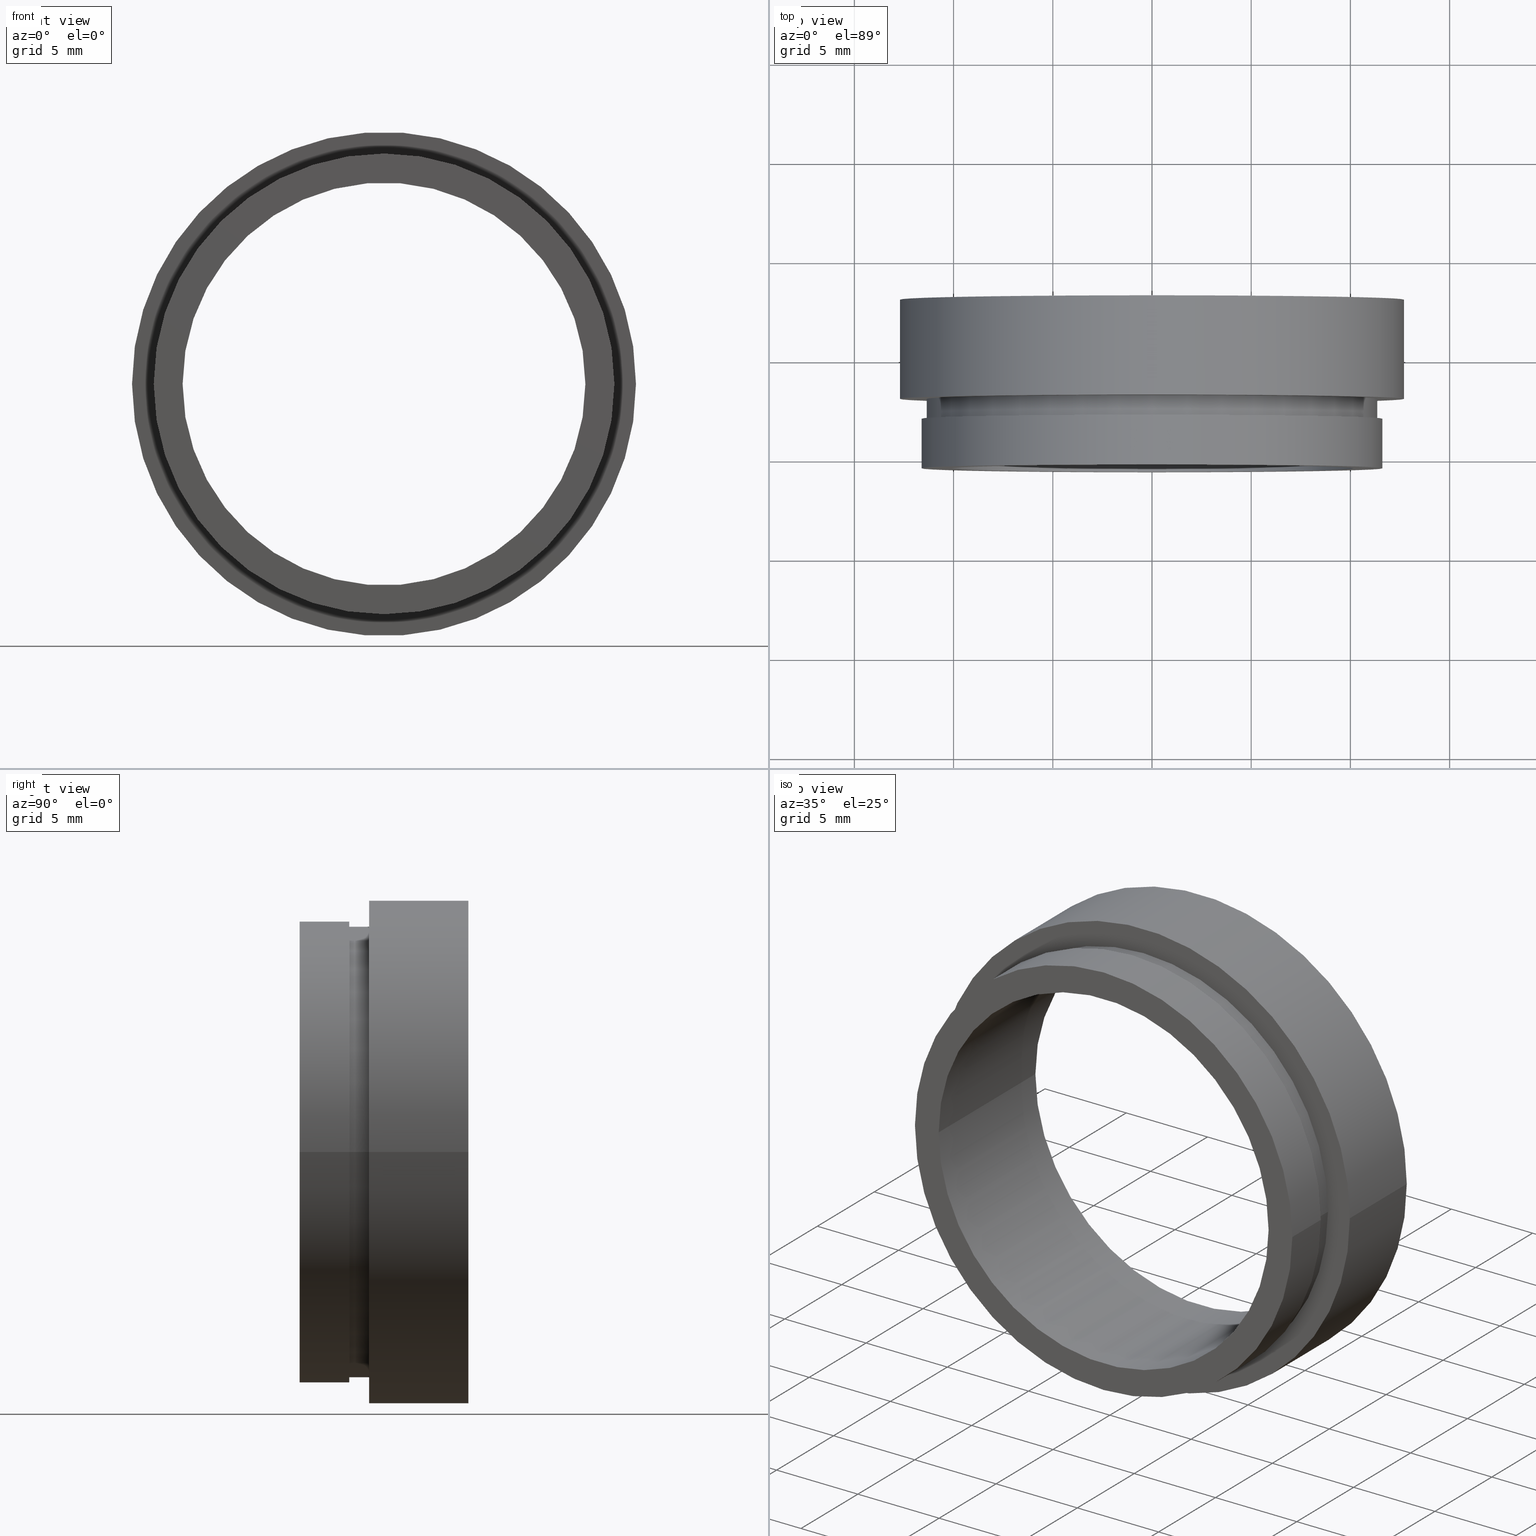
[diagram: canonical four-view strip — front | top / right | iso, engineering-drawing reading convention]
A machine part, canonical four-view strip (front | top / right | iso — engineering-drawing reading convention). The complete STEP part file that produces these views, byte-faithful:
ISO-10303-21;
HEADER;
FILE_DESCRIPTION (( 'STEP AP214' ),
    '1' );
FILE_NAME ('504129.STEP',
    '2019-10-09T01:59:32',
    ( '' ),
    ( '' ),
    'SwSTEP 2.0',
    'SolidWorks 2016',
    '' );
FILE_SCHEMA (( 'AUTOMOTIVE_DESIGN' ));
ENDSEC;

DATA;
#1 = AXIS2_PLACEMENT_3D ( 'NONE', #298, #390, #354 ) ;
#2 =( LENGTH_UNIT ( ) NAMED_UNIT ( * ) SI_UNIT ( .MILLI., .METRE. ) );
#3 = CIRCLE ( 'NONE', #41, 12.69999999999999800 ) ;
#4 = EDGE_LOOP ( 'NONE', ( #210, #407, #357, #266 ) ) ;
#5 =( GEOMETRIC_REPRESENTATION_CONTEXT ( 3 ) GLOBAL_UNCERTAINTY_ASSIGNED_CONTEXT ( ( #335 ) ) GLOBAL_UNIT_ASSIGNED_CONTEXT ( ( #80, #282, #431 ) ) REPRESENTATION_CONTEXT ( 'NONE', 'WORKASPACE' ) );
#6 = MECHANICAL_DESIGN_GEOMETRIC_PRESENTATION_REPRESENTATION (  '', ( #139 ), #248 ) ;
#7 = VECTOR ( 'NONE', #274, 1000.000000000000000 ) ;
#8 = SURFACE_STYLE_USAGE ( .BOTH. , #404 ) ;
#9 = DIRECTION ( 'NONE',  ( -1.224646799147351000E-016, 1.000000000000000000, -0.0000000000000000000 ) ) ;
#10 = FACE_OUTER_BOUND ( 'NONE', #172, .T. ) ;
#11 = VERTEX_POINT ( 'NONE', #190 ) ;
#12 = AXIS2_PLACEMENT_3D ( 'NONE', #189, #54, #19 ) ;
#13 = VECTOR ( 'NONE', #300, 1000.000000000000000 ) ;
#14 = EDGE_CURVE ( 'NONE', #258, #179, #371, .T. ) ;
#15 = LINE ( 'NONE', #350, #351 ) ;
#16 = ORIENTED_EDGE ( 'NONE', *, *, #77, .F. ) ;
#17 = VERTEX_POINT ( 'NONE', #157 ) ;
#18 = AXIS2_PLACEMENT_3D ( 'NONE', #156, #311, #46 ) ;
#19 = DIRECTION ( 'NONE',  ( -1.000000000000000000, 0.0000000000000000000, 0.0000000000000000000 ) ) ;
#20 = ADVANCED_FACE ( 'NONE', ( #433, #328 ), #121, .F. ) ;
#21 = ORIENTED_EDGE ( 'NONE', *, *, #145, .T. ) ;
#22 = DIRECTION ( 'NONE',  ( -1.000000000000000000, -1.214007600543631100E-016, 0.0000000000000000000 ) ) ;
#23 = DIRECTION ( 'NONE',  ( 1.000000000000000000, 1.224646799147351000E-016, 0.0000000000000000000 ) ) ;
#24 = DIRECTION ( 'NONE',  ( -1.224646799147351000E-016, 1.000000000000000000, -0.0000000000000000000 ) ) ;
#25 = CIRCLE ( 'NONE', #26, 11.60999999999999900 ) ;
#26 = AXIS2_PLACEMENT_3D ( 'NONE', #212, #430, #22 ) ;
#27 =( NAMED_UNIT ( * ) PLANE_ANGLE_UNIT ( ) SI_UNIT ( $, .RADIAN. ) );
#28 = CARTESIAN_POINT ( 'NONE',  ( 11.35000000000000100, 2.954535588880335500, 0.0000000000000000000 ) ) ;
#29 = FILL_AREA_STYLE_COLOUR ( '', #34 ) ;
#30 = ORIENTED_EDGE ( 'NONE', *, *, #215, .T. ) ;
#31 = DIRECTION ( 'NONE',  ( 1.000000000000000000, 0.0000000000000000000, 0.0000000000000000000 ) ) ;
#32 = FILL_AREA_STYLE_COLOUR ( '', #39 ) ;
#33 = CARTESIAN_POINT ( 'NONE',  ( 0.0000000000000000000, 16.88601823708207700, 0.0000000000000000000 ) ) ;
#34 = COLOUR_RGB ( '',1.000000000000000000, 1.000000000000000000, 1.000000000000000000 ) ;
#35 = PRESENTATION_LAYER_ASSIGNMENT (  '', '', ( #420 ) ) ;
#36 = VERTEX_POINT ( 'NONE', #160 ) ;
#37 = AXIS2_PLACEMENT_3D ( 'NONE', #122, #195, #31 ) ;
#38 = DIRECTION ( 'NONE',  ( -1.224646799147351000E-016, 1.000000000000000000, -0.0000000000000000000 ) ) ;
#39 = COLOUR_RGB ( '',1.000000000000000000, 1.000000000000000000, 1.000000000000000000 ) ;
#40 = LINE ( 'NONE', #301, #126 ) ;
#41 = AXIS2_PLACEMENT_3D ( 'NONE', #290, #218, #385 ) ;
#42 = FACE_OUTER_BOUND ( 'NONE', #152, .T. ) ;
#43 = CIRCLE ( 'NONE', #178, 11.60999999999999900 ) ;
#44 = CARTESIAN_POINT ( 'NONE',  ( 2.134740942951285100E-015, -0.5454644111196650400, 0.0000000000000000000 ) ) ;
#45 = ORIENTED_EDGE ( 'NONE', *, *, #296, .T. ) ;
#46 = DIRECTION ( 'NONE',  ( 1.000000000000000000, 1.224646799147351000E-016, 0.0000000000000000000 ) ) ;
#47 = DIRECTION ( 'NONE',  ( -1.000000000000000000, -1.365923996832131900E-016, 0.0000000000000000000 ) ) ;
#48 = MECHANICAL_DESIGN_GEOMETRIC_PRESENTATION_REPRESENTATION (  '', ( #420 ), #88 ) ;
#49 = CYLINDRICAL_SURFACE ( 'NONE', #60, 10.15000000000000200 ) ;
#50 =( NAMED_UNIT ( * ) PLANE_ANGLE_UNIT ( ) SI_UNIT ( $, .RADIAN. ) );
#51 = PRODUCT_DEFINITION ( 'δ֪', '', #326, #408 ) ;
#52 = PRESENTATION_LAYER_ASSIGNMENT (  '', '', ( #191 ) ) ;
#53 = DIRECTION ( 'NONE',  ( -1.000000000000000000, 0.0000000000000000000, 0.0000000000000000000 ) ) ;
#54 = DIRECTION ( 'NONE',  ( -1.224646799147351000E-016, 1.000000000000000000, -0.0000000000000000000 ) ) ;
#55 = ORIENTED_EDGE ( 'NONE', *, *, #106, .T. ) ;
#56 = CARTESIAN_POINT ( 'NONE',  ( 10.15000000000000400, -0.5454644111196651500, 0.0000000000000000000 ) ) ;
#57 = DIRECTION ( 'NONE',  ( -1.000000000000000000, 0.0000000000000000000, 0.0000000000000000000 ) ) ;
#58 = ORIENTED_EDGE ( 'NONE', *, *, #233, .T. ) ;
#59 = EDGE_LOOP ( 'NONE', ( #194, #197 ) ) ;
#60 = AXIS2_PLACEMENT_3D ( 'NONE', #284, #24, #53 ) ;
#61 = FILL_AREA_STYLE ('',( #32 ) ) ;
#62 = SURFACE_STYLE_USAGE ( .BOTH. , #222 ) ;
#63 = CYLINDRICAL_SURFACE ( 'NONE', #95, 10.15000000000000200 ) ;
#64 = AXIS2_PLACEMENT_3D ( 'NONE', #33, #198, #91 ) ;
#65 = ORIENTED_EDGE ( 'NONE', *, *, #77, .T. ) ;
#66 = PRESENTATION_LAYER_ASSIGNMENT (  '', '', ( #139 ) ) ;
#67 = SURFACE_STYLE_FILL_AREA ( #330 ) ;
#68 = VECTOR ( 'NONE', #83, 1000.000000000000000 ) ;
#69 = COLOUR_RGB ( '',1.000000000000000000, 1.000000000000000000, 1.000000000000000000 ) ;
#70 = UNCERTAINTY_MEASURE_WITH_UNIT (LENGTH_MEASURE( 1.000000000000000100E-005 ), #363, 'distance_accuracy_value', 'NONE');
#71 = MECHANICAL_DESIGN_GEOMETRIC_PRESENTATION_REPRESENTATION (  '', ( #245 ), #114 ) ;
#72 = EDGE_CURVE ( 'NONE', #180, #309, #161, .T. ) ;
#73 = EDGE_LOOP ( 'NONE', ( #346, #111 ) ) ;
#74 = ORIENTED_EDGE ( 'NONE', *, *, #306, .T. ) ;
#75 = ORIENTED_EDGE ( 'NONE', *, *, #257, .F. ) ;
#76 = PRESENTATION_LAYER_ASSIGNMENT (  '', '', ( #199 ) ) ;
#77 = EDGE_CURVE ( 'NONE', #17, #108, #244, .T. ) ;
#78 = DIRECTION ( 'NONE',  ( -1.000000000000000000, -1.174997428309413300E-016, 0.0000000000000000000 ) ) ;
#79 = CARTESIAN_POINT ( 'NONE',  ( 12.69999999999999800, 16.88601823708207700, 1.555301434917138200E-015 ) ) ;
#80 =( LENGTH_UNIT ( ) NAMED_UNIT ( * ) SI_UNIT ( .MILLI., .METRE. ) );
#81 = FACE_BOUND ( 'NONE', #333, .T. ) ;
#82 = ADVANCED_FACE ( 'NONE', ( #10 ), #63, .F. ) ;
#83 = DIRECTION ( 'NONE',  ( -1.224646799147351000E-016, 1.000000000000000000, -0.0000000000000000000 ) ) ;
#84 = PLANE ( 'NONE',  #204 ) ;
#85 = ORIENTED_EDGE ( 'NONE', *, *, #201, .T. ) ;
#86 = CARTESIAN_POINT ( 'NONE',  ( 1.706114563249712500E-015, 2.954535588880332900, 0.0000000000000000000 ) ) ;
#87 = CARTESIAN_POINT ( 'NONE',  ( 1.093791163676037000E-015, 7.954535588880333700, 0.0000000000000000000 ) ) ;
#88 =( GEOMETRIC_REPRESENTATION_CONTEXT ( 3 ) GLOBAL_UNCERTAINTY_ASSIGNED_CONTEXT ( ( #146 ) ) GLOBAL_UNIT_ASSIGNED_CONTEXT ( ( #2, #167, #203 ) ) REPRESENTATION_CONTEXT ( 'NONE', 'WORKASPACE' ) );
#89 = SURFACE_STYLE_FILL_AREA ( #276 ) ;
#90 = DIRECTION ( 'NONE',  ( -1.000000000000000000, -1.224646799147351000E-016, 0.0000000000000000000 ) ) ;
#91 = DIRECTION ( 'NONE',  ( -1.000000000000000000, 0.0000000000000000000, 0.0000000000000000000 ) ) ;
#92 = PRODUCT_CONTEXT ( 'NONE', #192, 'mechanical' ) ;
#93 = ORIENTED_EDGE ( 'NONE', *, *, #280, .F. ) ;
#94 = SURFACE_SIDE_STYLE ('',( #273 ) ) ;
#95 = AXIS2_PLACEMENT_3D ( 'NONE', #154, #123, #57 ) ;
#96 = DIRECTION ( 'NONE',  ( -1.000000000000000000, 0.0000000000000000000, 0.0000000000000000000 ) ) ;
#97 = EDGE_CURVE ( 'NONE', #425, #11, #3, .T. ) ;
#98 = CARTESIAN_POINT ( 'NONE',  ( 11.61000000000000100, -0.5454644111196637100, 1.421814933810076900E-015 ) ) ;
#99 =( NAMED_UNIT ( * ) PLANE_ANGLE_UNIT ( ) SI_UNIT ( $, .RADIAN. ) );
#100 = DIRECTION ( 'NONE',  ( -1.224646799147351000E-016, 1.000000000000000000, -0.0000000000000000000 ) ) ;
#101 = EDGE_LOOP ( 'NONE', ( #272, #253, #45, #75 ) ) ;
#102 = PRESENTATION_STYLE_ASSIGNMENT (( #8 ) ) ;
#103 = CARTESIAN_POINT ( 'NONE',  ( -10.15000000000000000, -0.5454644111196662600, 0.0000000000000000000 ) ) ;
#104 = UNCERTAINTY_MEASURE_WITH_UNIT (LENGTH_MEASURE( 1.000000000000000100E-005 ), #220, 'distance_accuracy_value', 'NONE');
#105 = AXIS2_PLACEMENT_3D ( 'NONE', #86, #320, #384 ) ;
#106 = EDGE_CURVE ( 'NONE', #297, #405, #151, .T. ) ;
#107 = LINE ( 'NONE', #260, #366 ) ;
#108 = VERTEX_POINT ( 'NONE', #243 ) ;
#109 = AXIS2_PLACEMENT_3D ( 'NONE', #265, #175, #137 ) ;
#110 = EDGE_LOOP ( 'NONE', ( #112, #58 ) ) ;
#111 = ORIENTED_EDGE ( 'NONE', *, *, #319, .T. ) ;
#112 = ORIENTED_EDGE ( 'NONE', *, *, #327, .T. ) ;
#113 = SURFACE_SIDE_STYLE ('',( #89 ) ) ;
#114 =( GEOMETRIC_REPRESENTATION_CONTEXT ( 3 ) GLOBAL_UNCERTAINTY_ASSIGNED_CONTEXT ( ( #70 ) ) GLOBAL_UNIT_ASSIGNED_CONTEXT ( ( #363, #99, #168 ) ) REPRESENTATION_CONTEXT ( 'NONE', 'WORKASPACE' ) );
#115 = ADVANCED_FACE ( 'NONE', ( #81, #307 ), #84, .F. ) ;
#116 = APPLICATION_PROTOCOL_DEFINITION ( 'draft international standard', 'automotive_design', 1998, #192 ) ;
#117 = COLOUR_RGB ( '',1.000000000000000000, 1.000000000000000000, 1.000000000000000000 ) ;
#118 = EDGE_CURVE ( 'NONE', #341, #179, #43, .T. ) ;
#119 = DIRECTION ( 'NONE',  ( -1.000000000000000000, 0.0000000000000000000, 0.0000000000000000000 ) ) ;
#120 = CARTESIAN_POINT ( 'NONE',  ( 1.828579243164447600E-015, 1.954535588880333700, 0.0000000000000000000 ) ) ;
#121 = PLANE ( 'NONE',  #140 ) ;
#122 = CARTESIAN_POINT ( 'NONE',  ( 0.0000000000000000000, 0.0000000000000000000, 0.0000000000000000000 ) ) ;
#123 = DIRECTION ( 'NONE',  ( -1.224646799147351000E-016, 1.000000000000000000, -0.0000000000000000000 ) ) ;
#124 = FILL_AREA_STYLE ('',( #29 ) ) ;
#125 =( NAMED_UNIT ( * ) PLANE_ANGLE_UNIT ( ) SI_UNIT ( $, .RADIAN. ) );
#126 = VECTOR ( 'NONE', #100, 1000.000000000000000 ) ;
#127 = CIRCLE ( 'NONE', #398, 12.69999999999999800 ) ;
#128 = AXIS2_PLACEMENT_3D ( 'NONE', #182, #374, #188 ) ;
#129 = EDGE_CURVE ( 'NONE', #179, #341, #302, .T. ) ;
#130 = AXIS2_PLACEMENT_3D ( 'NONE', #120, #422, #428 ) ;
#131 = CARTESIAN_POINT ( 'NONE',  ( 1.828579243164447600E-015, 1.954535588880333700, 0.0000000000000000000 ) ) ;
#132 = FACE_OUTER_BOUND ( 'NONE', #434, .T. ) ;
#133 = EDGE_LOOP ( 'NONE', ( #417, #21 ) ) ;
#134 = DIRECTION ( 'NONE',  ( -1.000000000000000000, 0.0000000000000000000, 0.0000000000000000000 ) ) ;
#135 = UNCERTAINTY_MEASURE_WITH_UNIT (LENGTH_MEASURE( 1.000000000000000100E-005 ), #163, 'distance_accuracy_value', 'NONE');
#136 = ORIENTED_EDGE ( 'NONE', *, *, #270, .F. ) ;
#137 = DIRECTION ( 'NONE',  ( -1.000000000000000000, 0.0000000000000000000, 0.0000000000000000000 ) ) ;
#138 = AXIS2_PLACEMENT_3D ( 'NONE', #387, #288, #224 ) ;
#139 = STYLED_ITEM ( 'NONE', ( #410 ), #324 ) ;
#140 = AXIS2_PLACEMENT_3D ( 'NONE', #28, #225, #90 ) ;
#141 = ORIENTED_EDGE ( 'NONE', *, *, #369, .F. ) ;
#142 = ORIENTED_EDGE ( 'NONE', *, *, #215, .F. ) ;
#143 = CARTESIAN_POINT ( 'NONE',  ( -11.60999999999999800, 1.954535588880332400, 0.0000000000000000000 ) ) ;
#144 =( GEOMETRIC_REPRESENTATION_CONTEXT ( 3 ) GLOBAL_UNCERTAINTY_ASSIGNED_CONTEXT ( ( #181 ) ) GLOBAL_UNIT_ASSIGNED_CONTEXT ( ( #242, #50, #281 ) ) REPRESENTATION_CONTEXT ( 'NONE', 'WORKASPACE' ) );
#145 = EDGE_CURVE ( 'NONE', #11, #425, #127, .T. ) ;
#146 = UNCERTAINTY_MEASURE_WITH_UNIT (LENGTH_MEASURE( 1.000000000000000100E-005 ), #2, 'distance_accuracy_value', 'NONE');
#147 = FACE_OUTER_BOUND ( 'NONE', #176, .T. ) ;
#148 = DIRECTION ( 'NONE',  ( -1.224646799147351000E-016, 1.000000000000000000, -0.0000000000000000000 ) ) ;
#149 = CARTESIAN_POINT ( 'NONE',  ( 10.15000000000000200, 16.88601823708207700, 1.243016501134563900E-015 ) ) ;
#150 = CARTESIAN_POINT ( 'NONE',  ( 1.828579243164447600E-015, 1.954535588880333700, 0.0000000000000000000 ) ) ;
#151 = CIRCLE ( 'NONE', #362, 12.69999999999999800 ) ;
#152 = EDGE_LOOP ( 'NONE', ( #364, #237, #74, #254 ) ) ;
#153 = DIRECTION ( 'NONE',  ( -1.000000000000000000, -1.224646799147351000E-016, 0.0000000000000000000 ) ) ;
#154 = CARTESIAN_POINT ( 'NONE',  ( 0.0000000000000000000, 16.88601823708207700, 0.0000000000000000000 ) ) ;
#155 = STYLED_ITEM ( 'NONE', ( #396 ), #279 ) ;
#156 = CARTESIAN_POINT ( 'NONE',  ( 11.35000000000000300, 1.954535588880335500, 0.0000000000000000000 ) ) ;
#157 = CARTESIAN_POINT ( 'NONE',  ( 11.35000000000000300, 1.954535588880335100, 1.389974117032246300E-015 ) ) ;
#158 = FACE_OUTER_BOUND ( 'NONE', #375, .T. ) ;
#159 = APPLICATION_CONTEXT ( 'automotive_design' ) ;
#160 = CARTESIAN_POINT ( 'NONE',  ( -11.34999999999999800, 2.954535588880331500, 0.0000000000000000000 ) ) ;
#161 = CIRCLE ( 'NONE', #170, 10.15000000000000000 ) ;
#162 = ORIENTED_EDGE ( 'NONE', *, *, #106, .F. ) ;
#163 =( LENGTH_UNIT ( ) NAMED_UNIT ( * ) SI_UNIT ( .MILLI., .METRE. ) );
#164 = PRESENTATION_STYLE_ASSIGNMENT (( #380 ) ) ;
#165 = SURFACE_STYLE_USAGE ( .BOTH. , #94 ) ;
#166 = AXIS2_PLACEMENT_3D ( 'NONE', #221, #313, #285 ) ;
#167 =( NAMED_UNIT ( * ) PLANE_ANGLE_UNIT ( ) SI_UNIT ( $, .RADIAN. ) );
#168 =( NAMED_UNIT ( * ) SI_UNIT ( $, .STERADIAN. ) SOLID_ANGLE_UNIT ( ) );
#169 = ORIENTED_EDGE ( 'NONE', *, *, #280, .T. ) ;
#170 = AXIS2_PLACEMENT_3D ( 'NONE', #87, #259, #392 ) ;
#171 = CARTESIAN_POINT ( 'NONE',  ( 11.35000000000000000, 16.88601823708207700, 1.389974117032245900E-015 ) ) ;
#172 = EDGE_LOOP ( 'NONE', ( #141, #271, #318, #202 ) ) ;
#173 = CARTESIAN_POINT ( 'NONE',  ( 2.134740942951285100E-015, -0.5454644111196650400, 0.0000000000000000000 ) ) ;
#174 = EDGE_CURVE ( 'NONE', #36, #262, #395, .T. ) ;
#175 = DIRECTION ( 'NONE',  ( -1.224646799147351000E-016, 1.000000000000000000, -0.0000000000000000000 ) ) ;
#176 = EDGE_LOOP ( 'NONE', ( #246, #136 ) ) ;
#177 = CYLINDRICAL_SURFACE ( 'NONE', #358, 12.69999999999999800 ) ;
#178 = AXIS2_PLACEMENT_3D ( 'NONE', #150, #382, #424 ) ;
#179 = VERTEX_POINT ( 'NONE', #312 ) ;
#180 = VERTEX_POINT ( 'NONE', #381 ) ;
#181 = UNCERTAINTY_MEASURE_WITH_UNIT (LENGTH_MEASURE( 1.000000000000000100E-005 ), #242, 'distance_accuracy_value', 'NONE');
#182 = CARTESIAN_POINT ( 'NONE',  ( 1.706114563249712500E-015, 2.954535588880332900, 0.0000000000000000000 ) ) ;
#183 = PLANE ( 'NONE',  #412 ) ;
#184 = DIRECTION ( 'NONE',  ( -1.000000000000000000, -1.365923996832131900E-016, 0.0000000000000000000 ) ) ;
#185 = AXIS2_PLACEMENT_3D ( 'NONE', #131, #9, #227 ) ;
#186 = EDGE_LOOP ( 'NONE', ( #93, #355, #340, #361 ) ) ;
#187 = ADVANCED_FACE ( 'NONE', ( #292 ), #386, .T. ) ;
#188 = DIRECTION ( 'NONE',  ( -1.000000000000000000, -1.365923996832131900E-016, 0.0000000000000000000 ) ) ;
#189 = CARTESIAN_POINT ( 'NONE',  ( 0.0000000000000000000, 16.88601823708207700, 0.0000000000000000000 ) ) ;
#190 = CARTESIAN_POINT ( 'NONE',  ( 12.69999999999999900, 7.954535588880335500, 1.555301434917138200E-015 ) ) ;
#191 = STYLED_ITEM ( 'NONE', ( #287 ), #82 ) ;
#192 = APPLICATION_CONTEXT ( 'automotive_design' ) ;
#193 = FILL_AREA_STYLE_COLOUR ( '', #69 ) ;
#194 = ORIENTED_EDGE ( 'NONE', *, *, #118, .T. ) ;
#195 = DIRECTION ( 'NONE',  ( 0.0000000000000000000, 0.0000000000000000000, 1.000000000000000000 ) ) ;
#196 = SURFACE_STYLE_USAGE ( .BOTH. , #314 ) ;
#197 = ORIENTED_EDGE ( 'NONE', *, *, #129, .T. ) ;
#198 = DIRECTION ( 'NONE',  ( -1.224646799147351000E-016, 1.000000000000000000, -0.0000000000000000000 ) ) ;
#199 = STYLED_ITEM ( 'NONE', ( #164 ), #379 ) ;
#200 = FACE_OUTER_BOUND ( 'NONE', #4, .T. ) ;
#201 = EDGE_CURVE ( 'NONE', #108, #17, #373, .T. ) ;
#202 = ORIENTED_EDGE ( 'NONE', *, *, #72, .T. ) ;
#203 =( NAMED_UNIT ( * ) SI_UNIT ( $, .STERADIAN. ) SOLID_ANGLE_UNIT ( ) );
#204 = AXIS2_PLACEMENT_3D ( 'NONE', #344, #321, #23 ) ;
#205 = DIRECTION ( 'NONE',  ( -1.224646799147351000E-016, 1.000000000000000000, -0.0000000000000000000 ) ) ;
#206 = PRESENTATION_STYLE_ASSIGNMENT (( #165 ) ) ;
#207 = ORIENTED_EDGE ( 'NONE', *, *, #319, .F. ) ;
#208 = PRESENTATION_LAYER_ASSIGNMENT (  '', '', ( #155 ) ) ;
#209 = AXIS2_PLACEMENT_3D ( 'NONE', #277, #223, #389 ) ;
#210 = ORIENTED_EDGE ( 'NONE', *, *, #423, .T. ) ;
#211 = CIRCLE ( 'NONE', #105, 11.35000000000000000 ) ;
#212 = CARTESIAN_POINT ( 'NONE',  ( 2.134740942951285100E-015, -0.5454644111196650400, 0.0000000000000000000 ) ) ;
#213 = CARTESIAN_POINT ( 'NONE',  ( 1.093791163676037000E-015, 7.954535588880333700, 0.0000000000000000000 ) ) ;
#214 = AXIS2_PLACEMENT_3D ( 'NONE', #44, #388, #78 ) ;
#215 = EDGE_CURVE ( 'NONE', #108, #36, #40, .T. ) ;
#216 = SHAPE_DEFINITION_REPRESENTATION ( #376, #324 ) ;
#217 = ADVANCED_FACE ( 'NONE', ( #42 ), #394, .T. ) ;
#218 = DIRECTION ( 'NONE',  ( -1.224646799147351000E-016, 1.000000000000000000, -0.0000000000000000000 ) ) ;
#219 = CIRCLE ( 'NONE', #214, 10.15000000000000200 ) ;
#220 =( LENGTH_UNIT ( ) NAMED_UNIT ( * ) SI_UNIT ( .MILLI., .METRE. ) );
#221 = CARTESIAN_POINT ( 'NONE',  ( 1.706114563249712500E-015, 2.954535588880332900, 0.0000000000000000000 ) ) ;
#222 = SURFACE_SIDE_STYLE ('',( #275 ) ) ;
#223 = DIRECTION ( 'NONE',  ( -1.224646799147351000E-016, 1.000000000000000000, -0.0000000000000000000 ) ) ;
#224 = DIRECTION ( 'NONE',  ( -1.000000000000000000, -1.214007600543631100E-016, 0.0000000000000000000 ) ) ;
#225 = DIRECTION ( 'NONE',  ( -1.224646799147351000E-016, 1.000000000000000000, 0.0000000000000000000 ) ) ;
#226 = ORIENTED_EDGE ( 'NONE', *, *, #249, .F. ) ;
#227 = DIRECTION ( 'NONE',  ( -1.000000000000000000, -1.146293045799652200E-016, 0.0000000000000000000 ) ) ;
#228 = AXIS2_PLACEMENT_3D ( 'NONE', #173, #409, #305 ) ;
#229 = CARTESIAN_POINT ( 'NONE',  ( -11.60999999999999900, 16.88601823708207700, 0.0000000000000000000 ) ) ;
#230 = MECHANICAL_DESIGN_GEOMETRIC_PRESENTATION_REPRESENTATION (  '', ( #191 ), #5 ) ;
#231 = EDGE_LOOP ( 'NONE', ( #226, #65, #30, #207 ) ) ;
#232 = VERTEX_POINT ( 'NONE', #336 ) ;
#233 = EDGE_CURVE ( 'NONE', #304, #308, #403, .T. ) ;
#234 = CIRCLE ( 'NONE', #128, 12.69999999999999800 ) ;
#235 = VECTOR ( 'NONE', #429, 1000.000000000000000 ) ;
#236 = UNCERTAINTY_MEASURE_WITH_UNIT (LENGTH_MEASURE( 1.000000000000000100E-005 ), #251, 'distance_accuracy_value', 'NONE');
#237 = ORIENTED_EDGE ( 'NONE', *, *, #270, .T. ) ;
#238 = CARTESIAN_POINT ( 'NONE',  ( 0.0000000000000000000, 16.88601823708207700, 0.0000000000000000000 ) ) ;
#239 = FACE_OUTER_BOUND ( 'NONE', #186, .T. ) ;
#240 = FILL_AREA_STYLE_COLOUR ( '', #256 ) ;
#241 = ADVANCED_FACE ( 'NONE', ( #158 ), #264, .T. ) ;
#242 =( LENGTH_UNIT ( ) NAMED_UNIT ( * ) SI_UNIT ( .MILLI., .METRE. ) );
#243 = CARTESIAN_POINT ( 'NONE',  ( -11.35000000000000000, 1.954535588880332400, 0.0000000000000000000 ) ) ;
#244 = CIRCLE ( 'NONE', #209, 11.35000000000000100 ) ;
#245 = STYLED_ITEM ( 'NONE', ( #102 ), #255 ) ;
#246 = ORIENTED_EDGE ( 'NONE', *, *, #423, .F. ) ;
#247 = DIRECTION ( 'NONE',  ( -1.224646799147351000E-016, 1.000000000000000000, -0.0000000000000000000 ) ) ;
#248 =( GEOMETRIC_REPRESENTATION_CONTEXT ( 3 ) GLOBAL_UNCERTAINTY_ASSIGNED_CONTEXT ( ( #236 ) ) GLOBAL_UNIT_ASSIGNED_CONTEXT ( ( #251, #125, #356 ) ) REPRESENTATION_CONTEXT ( 'NONE', 'WORKASPACE' ) );
#249 = EDGE_CURVE ( 'NONE', #17, #262, #416, .T. ) ;
#250 =( NAMED_UNIT ( * ) SI_UNIT ( $, .STERADIAN. ) SOLID_ANGLE_UNIT ( ) );
#251 =( LENGTH_UNIT ( ) NAMED_UNIT ( * ) SI_UNIT ( .MILLI., .METRE. ) );
#252 = CARTESIAN_POINT ( 'NONE',  ( 11.35000000000000100, 2.954535588880334200, 1.389974117032245900E-015 ) ) ;
#253 = ORIENTED_EDGE ( 'NONE', *, *, #369, .T. ) ;
#254 = ORIENTED_EDGE ( 'NONE', *, *, #129, .F. ) ;
#255 = MANIFOLD_SOLID_BREP ( '��ת1', #278 ) ;
#256 = COLOUR_RGB ( '',1.000000000000000000, 1.000000000000000000, 1.000000000000000000 ) ;
#257 = EDGE_CURVE ( 'NONE', #308, #180, #107, .T. ) ;
#258 = VERTEX_POINT ( 'NONE', #98 ) ;
#259 = DIRECTION ( 'NONE',  ( -1.224646799147351000E-016, 1.000000000000000000, -0.0000000000000000000 ) ) ;
#260 = CARTESIAN_POINT ( 'NONE',  ( -10.15000000000000200, 16.88601823708207700, 0.0000000000000000000 ) ) ;
#261 = ORIENTED_EDGE ( 'NONE', *, *, #201, .F. ) ;
#262 = VERTEX_POINT ( 'NONE', #252 ) ;
#263 = CARTESIAN_POINT ( 'NONE',  ( 0.0000000000000000000, 16.88601823708207700, 0.0000000000000000000 ) ) ;
#264 = CYLINDRICAL_SURFACE ( 'NONE', #268, 11.35000000000000000 ) ;
#265 = CARTESIAN_POINT ( 'NONE',  ( 0.0000000000000000000, 16.88601823708207700, 0.0000000000000000000 ) ) ;
#266 = ORIENTED_EDGE ( 'NONE', *, *, #306, .F. ) ;
#267 = PRODUCT ( '504129', '504129', '', ( #92 ) ) ;
#268 = AXIS2_PLACEMENT_3D ( 'NONE', #263, #365, #134 ) ;
#269 = FACE_OUTER_BOUND ( 'NONE', #59, .T. ) ;
#270 = EDGE_CURVE ( 'NONE', #258, #232, #303, .T. ) ;
#271 = ORIENTED_EDGE ( 'NONE', *, *, #327, .F. ) ;
#272 = ORIENTED_EDGE ( 'NONE', *, *, #233, .F. ) ;
#273 = SURFACE_STYLE_FILL_AREA ( #61 ) ;
#274 = DIRECTION ( 'NONE',  ( -1.224646799147351000E-016, 1.000000000000000000, -0.0000000000000000000 ) ) ;
#275 = SURFACE_STYLE_FILL_AREA ( #124 ) ;
#276 = FILL_AREA_STYLE ('',( #427 ) ) ;
#277 = CARTESIAN_POINT ( 'NONE',  ( 1.828579243164447600E-015, 1.954535588880333700, 0.0000000000000000000 ) ) ;
#278 = CLOSED_SHELL ( 'NONE', ( #279, #241, #283, #379, #421, #82, #115, #347, #20, #187, #352, #217 ) ) ;
#279 = ADVANCED_FACE ( 'NONE', ( #200 ), #426, .T. ) ;
#280 = EDGE_CURVE ( 'NONE', #405, #11, #299, .T. ) ;
#281 =( NAMED_UNIT ( * ) SI_UNIT ( $, .STERADIAN. ) SOLID_ANGLE_UNIT ( ) );
#282 =( NAMED_UNIT ( * ) PLANE_ANGLE_UNIT ( ) SI_UNIT ( $, .RADIAN. ) );
#283 = ADVANCED_FACE ( 'NONE', ( #132 ), #414, .T. ) ;
#284 = CARTESIAN_POINT ( 'NONE',  ( 0.0000000000000000000, 16.88601823708207700, 0.0000000000000000000 ) ) ;
#285 = DIRECTION ( 'NONE',  ( -1.000000000000000000, -1.146293045799652200E-016, 0.0000000000000000000 ) ) ;
#286 = DIRECTION ( 'NONE',  ( -1.224646799147351000E-016, 1.000000000000000000, -0.0000000000000000000 ) ) ;
#287 = PRESENTATION_STYLE_ASSIGNMENT (( #196 ) ) ;
#288 = DIRECTION ( 'NONE',  ( -1.224646799147351000E-016, 1.000000000000000000, -0.0000000000000000000 ) ) ;
#289 = FILL_AREA_STYLE ('',( #240 ) ) ;
#290 = CARTESIAN_POINT ( 'NONE',  ( 1.093791163676037000E-015, 7.954535588880333700, 0.0000000000000000000 ) ) ;
#291 = SURFACE_SIDE_STYLE ('',( #415 ) ) ;
#292 = FACE_OUTER_BOUND ( 'NONE', #231, .T. ) ;
#293 = ORIENTED_EDGE ( 'NONE', *, *, #249, .T. ) ;
#294 = FACE_OUTER_BOUND ( 'NONE', #101, .T. ) ;
#295 = PRESENTATION_LAYER_ASSIGNMENT (  '', '', ( #245 ) ) ;
#296 = EDGE_CURVE ( 'NONE', #309, #180, #418, .T. ) ;
#297 = VERTEX_POINT ( 'NONE', #337 ) ;
#298 = CARTESIAN_POINT ( 'NONE',  ( 1.093791163676037000E-015, 7.954535588880333700, 0.0000000000000000000 ) ) ;
#299 = LINE ( 'NONE', #79, #68 ) ;
#300 = DIRECTION ( 'NONE',  ( -1.224646799147351000E-016, 1.000000000000000000, -0.0000000000000000000 ) ) ;
#301 = CARTESIAN_POINT ( 'NONE',  ( -11.35000000000000000, 16.88601823708207700, 0.0000000000000000000 ) ) ;
#302 = CIRCLE ( 'NONE', #130, 11.60999999999999900 ) ;
#303 = CIRCLE ( 'NONE', #138, 11.60999999999999900 ) ;
#304 = VERTEX_POINT ( 'NONE', #411 ) ;
#305 = DIRECTION ( 'NONE',  ( -1.000000000000000000, -1.174997428309413300E-016, 0.0000000000000000000 ) ) ;
#306 = EDGE_CURVE ( 'NONE', #232, #341, #393, .T. ) ;
#307 = FACE_OUTER_BOUND ( 'NONE', #133, .T. ) ;
#308 = VERTEX_POINT ( 'NONE', #103 ) ;
#309 = VERTEX_POINT ( 'NONE', #317 ) ;
#310 = CARTESIAN_POINT ( 'NONE',  ( -12.69999999999999600, 7.954535588880332000, 0.0000000000000000000 ) ) ;
#311 = DIRECTION ( 'NONE',  ( 1.224646799147351000E-016, -1.000000000000000000, 0.0000000000000000000 ) ) ;
#312 = CARTESIAN_POINT ( 'NONE',  ( 11.61000000000000100, 1.954535588880335100, 1.421814933810076900E-015 ) ) ;
#313 = DIRECTION ( 'NONE',  ( -1.224646799147351000E-016, 1.000000000000000000, -0.0000000000000000000 ) ) ;
#314 = SURFACE_SIDE_STYLE ('',( #338 ) ) ;
#315 = EDGE_LOOP ( 'NONE', ( #261, #16 ) ) ;
#316 = DIRECTION ( 'NONE',  ( -1.224646799147351000E-016, 1.000000000000000000, 0.0000000000000000000 ) ) ;
#317 = CARTESIAN_POINT ( 'NONE',  ( 10.15000000000000200, 7.954535588880335500, 1.243016501134563900E-015 ) ) ;
#318 = ORIENTED_EDGE ( 'NONE', *, *, #257, .T. ) ;
#319 = EDGE_CURVE ( 'NONE', #262, #36, #211, .T. ) ;
#320 = DIRECTION ( 'NONE',  ( -1.224646799147351000E-016, 1.000000000000000000, -0.0000000000000000000 ) ) ;
#321 = DIRECTION ( 'NONE',  ( 1.224646799147351000E-016, -1.000000000000000000, 0.0000000000000000000 ) ) ;
#322 = SURFACE_STYLE_USAGE ( .BOTH. , #291 ) ;
#323 = CARTESIAN_POINT ( 'NONE',  ( 11.60999999999999900, 16.88601823708207700, 1.421814933810076900E-015 ) ) ;
#324 = ADVANCED_BREP_SHAPE_REPRESENTATION ( '504129', ( #255, #37 ), #144 ) ;
#325 =( NAMED_UNIT ( * ) PLANE_ANGLE_UNIT ( ) SI_UNIT ( $, .RADIAN. ) );
#326 = PRODUCT_DEFINITION_FORMATION_WITH_SPECIFIED_SOURCE ( '�κ�', '', #267, .NOT_KNOWN. ) ;
#327 = EDGE_CURVE ( 'NONE', #308, #304, #219, .T. ) ;
#328 = FACE_BOUND ( 'NONE', #73, .T. ) ;
#329 = ORIENTED_EDGE ( 'NONE', *, *, #174, .F. ) ;
#330 = FILL_AREA_STYLE ('',( #401 ) ) ;
#331 = VECTOR ( 'NONE', #205, 1000.000000000000000 ) ;
#332 = ORIENTED_EDGE ( 'NONE', *, *, #97, .F. ) ;
#333 = EDGE_LOOP ( 'NONE', ( #400, #397 ) ) ;
#334 = AXIS2_PLACEMENT_3D ( 'NONE', #432, #349, #96 ) ;
#335 = UNCERTAINTY_MEASURE_WITH_UNIT (LENGTH_MEASURE( 1.000000000000000100E-005 ), #80, 'distance_accuracy_value', 'NONE');
#336 = CARTESIAN_POINT ( 'NONE',  ( -11.60999999999999800, -0.5454644111196664800, 0.0000000000000000000 ) ) ;
#337 = CARTESIAN_POINT ( 'NONE',  ( -12.69999999999999600, 2.954535588880331100, 0.0000000000000000000 ) ) ;
#338 = SURFACE_STYLE_FILL_AREA ( #353 ) ;
#339 = MECHANICAL_DESIGN_GEOMETRIC_PRESENTATION_REPRESENTATION (  '', ( #155 ), #383 ) ;
#340 = ORIENTED_EDGE ( 'NONE', *, *, #399, .T. ) ;
#341 = VERTEX_POINT ( 'NONE', #143 ) ;
#342 = FACE_BOUND ( 'NONE', #110, .T. ) ;
#343 = PLANE ( 'NONE',  #18 ) ;
#344 = CARTESIAN_POINT ( 'NONE',  ( 10.15000000000000200, 7.954535588880335500, 0.0000000000000000000 ) ) ;
#345 = EDGE_CURVE ( 'NONE', #405, #297, #234, .T. ) ;
#346 = ORIENTED_EDGE ( 'NONE', *, *, #174, .T. ) ;
#347 = ADVANCED_FACE ( 'NONE', ( #239 ), #177, .T. ) ;
#348 = DIRECTION ( 'NONE',  ( -1.224646799147351000E-016, 1.000000000000000000, -0.0000000000000000000 ) ) ;
#349 = DIRECTION ( 'NONE',  ( -1.224646799147351000E-016, 1.000000000000000000, -0.0000000000000000000 ) ) ;
#350 = CARTESIAN_POINT ( 'NONE',  ( -12.69999999999999800, 16.88601823708207700, 0.0000000000000000000 ) ) ;
#351 = VECTOR ( 'NONE', #148, 1000.000000000000000 ) ;
#352 = ADVANCED_FACE ( 'NONE', ( #419, #269 ), #343, .F. ) ;
#353 = FILL_AREA_STYLE ('',( #193 ) ) ;
#354 = DIRECTION ( 'NONE',  ( -1.000000000000000000, -1.709087168450056200E-016, 0.0000000000000000000 ) ) ;
#355 = ORIENTED_EDGE ( 'NONE', *, *, #345, .T. ) ;
#356 =( NAMED_UNIT ( * ) SI_UNIT ( $, .STERADIAN. ) SOLID_ANGLE_UNIT ( ) );
#357 = ORIENTED_EDGE ( 'NONE', *, *, #118, .F. ) ;
#358 = AXIS2_PLACEMENT_3D ( 'NONE', #238, #348, #119 ) ;
#359 = COLOUR_RGB ( '',1.000000000000000000, 1.000000000000000000, 1.000000000000000000 ) ;
#360 =( NAMED_UNIT ( * ) SI_UNIT ( $, .STERADIAN. ) SOLID_ANGLE_UNIT ( ) );
#361 = ORIENTED_EDGE ( 'NONE', *, *, #145, .F. ) ;
#362 = AXIS2_PLACEMENT_3D ( 'NONE', #378, #286, #184 ) ;
#363 =( LENGTH_UNIT ( ) NAMED_UNIT ( * ) SI_UNIT ( .MILLI., .METRE. ) );
#364 = ORIENTED_EDGE ( 'NONE', *, *, #14, .F. ) ;
#365 = DIRECTION ( 'NONE',  ( -1.224646799147351000E-016, 1.000000000000000000, -0.0000000000000000000 ) ) ;
#366 = VECTOR ( 'NONE', #38, 1000.000000000000000 ) ;
#367 = ORIENTED_EDGE ( 'NONE', *, *, #345, .F. ) ;
#368 = PRODUCT_RELATED_PRODUCT_CATEGORY ( 'part', '', ( #267 ) ) ;
#369 = EDGE_CURVE ( 'NONE', #304, #309, #370, .T. ) ;
#370 = LINE ( 'NONE', #149, #7 ) ;
#371 = LINE ( 'NONE', #323, #235 ) ;
#372 = MECHANICAL_DESIGN_GEOMETRIC_PRESENTATION_REPRESENTATION (  '', ( #199 ), #406 ) ;
#373 = CIRCLE ( 'NONE', #185, 11.35000000000000100 ) ;
#374 = DIRECTION ( 'NONE',  ( -1.224646799147351000E-016, 1.000000000000000000, -0.0000000000000000000 ) ) ;
#375 = EDGE_LOOP ( 'NONE', ( #85, #293, #329, #142 ) ) ;
#376 = PRODUCT_DEFINITION_SHAPE ( 'NONE', 'NONE',  #51 ) ;
#377 = CARTESIAN_POINT ( 'NONE',  ( 12.69999999999999900, 2.954535588880334600, 1.555301434917138200E-015 ) ) ;
#378 = CARTESIAN_POINT ( 'NONE',  ( 1.706114563249712500E-015, 2.954535588880332900, 0.0000000000000000000 ) ) ;
#379 = ADVANCED_FACE ( 'NONE', ( #294 ), #49, .F. ) ;
#380 = SURFACE_STYLE_USAGE ( .BOTH. , #113 ) ;
#381 = CARTESIAN_POINT ( 'NONE',  ( -10.14999999999999900, 7.954535588880332000, 0.0000000000000000000 ) ) ;
#382 = DIRECTION ( 'NONE',  ( -1.224646799147351000E-016, 1.000000000000000000, -0.0000000000000000000 ) ) ;
#383 =( GEOMETRIC_REPRESENTATION_CONTEXT ( 3 ) GLOBAL_UNCERTAINTY_ASSIGNED_CONTEXT ( ( #135 ) ) GLOBAL_UNIT_ASSIGNED_CONTEXT ( ( #163, #325, #360 ) ) REPRESENTATION_CONTEXT ( 'NONE', 'WORKASPACE' ) );
#384 = DIRECTION ( 'NONE',  ( -1.000000000000000000, -1.146293045799652200E-016, 0.0000000000000000000 ) ) ;
#385 = DIRECTION ( 'NONE',  ( -1.000000000000000000, -1.365923996832131900E-016, 0.0000000000000000000 ) ) ;
#386 = CYLINDRICAL_SURFACE ( 'NONE', #12, 11.35000000000000000 ) ;
#387 = CARTESIAN_POINT ( 'NONE',  ( 2.134740942951285100E-015, -0.5454644111196650400, 0.0000000000000000000 ) ) ;
#388 = DIRECTION ( 'NONE',  ( -1.224646799147351000E-016, 1.000000000000000000, -0.0000000000000000000 ) ) ;
#389 = DIRECTION ( 'NONE',  ( -1.000000000000000000, -1.146293045799652200E-016, 0.0000000000000000000 ) ) ;
#390 = DIRECTION ( 'NONE',  ( -1.224646799147351000E-016, 1.000000000000000000, -0.0000000000000000000 ) ) ;
#391 = APPLICATION_PROTOCOL_DEFINITION ( 'draft international standard', 'automotive_design', 1998, #159 ) ;
#392 = DIRECTION ( 'NONE',  ( -1.000000000000000000, -1.709087168450056200E-016, 0.0000000000000000000 ) ) ;
#393 = LINE ( 'NONE', #229, #13 ) ;
#394 = CYLINDRICAL_SURFACE ( 'NONE', #109, 11.60999999999999900 ) ;
#395 = CIRCLE ( 'NONE', #166, 11.35000000000000000 ) ;
#396 = PRESENTATION_STYLE_ASSIGNMENT (( #62 ) ) ;
#397 = ORIENTED_EDGE ( 'NONE', *, *, #296, .F. ) ;
#398 = AXIS2_PLACEMENT_3D ( 'NONE', #213, #247, #47 ) ;
#399 = EDGE_CURVE ( 'NONE', #297, #425, #15, .T. ) ;
#400 = ORIENTED_EDGE ( 'NONE', *, *, #72, .F. ) ;
#401 = FILL_AREA_STYLE_COLOUR ( '', #359 ) ;
#402 = EDGE_LOOP ( 'NONE', ( #162, #367 ) ) ;
#403 = CIRCLE ( 'NONE', #228, 10.15000000000000200 ) ;
#404 = SURFACE_SIDE_STYLE ('',( #67 ) ) ;
#405 = VERTEX_POINT ( 'NONE', #377 ) ;
#406 =( GEOMETRIC_REPRESENTATION_CONTEXT ( 3 ) GLOBAL_UNCERTAINTY_ASSIGNED_CONTEXT ( ( #104 ) ) GLOBAL_UNIT_ASSIGNED_CONTEXT ( ( #220, #27, #250 ) ) REPRESENTATION_CONTEXT ( 'NONE', 'WORKASPACE' ) );
#407 = ORIENTED_EDGE ( 'NONE', *, *, #14, .T. ) ;
#408 = PRODUCT_DEFINITION_CONTEXT ( 'detailed design', #159, 'design' ) ;
#409 = DIRECTION ( 'NONE',  ( -1.224646799147351000E-016, 1.000000000000000000, -0.0000000000000000000 ) ) ;
#410 = PRESENTATION_STYLE_ASSIGNMENT (( #322 ) ) ;
#411 = CARTESIAN_POINT ( 'NONE',  ( 10.15000000000000400, -0.5454644111196639300, 1.243016501134563900E-015 ) ) ;
#412 = AXIS2_PLACEMENT_3D ( 'NONE', #56, #316, #153 ) ;
#413 = ORIENTED_EDGE ( 'NONE', *, *, #399, .F. ) ;
#414 = CYLINDRICAL_SURFACE ( 'NONE', #334, 12.69999999999999800 ) ;
#415 = SURFACE_STYLE_FILL_AREA ( #289 ) ;
#416 = LINE ( 'NONE', #171, #331 ) ;
#417 = ORIENTED_EDGE ( 'NONE', *, *, #97, .T. ) ;
#418 = CIRCLE ( 'NONE', #1, 10.15000000000000000 ) ;
#419 = FACE_BOUND ( 'NONE', #315, .T. ) ;
#420 = STYLED_ITEM ( 'NONE', ( #206 ), #217 ) ;
#421 = ADVANCED_FACE ( 'NONE', ( #147, #342 ), #183, .F. ) ;
#422 = DIRECTION ( 'NONE',  ( -1.224646799147351000E-016, 1.000000000000000000, -0.0000000000000000000 ) ) ;
#423 = EDGE_CURVE ( 'NONE', #232, #258, #25, .T. ) ;
#424 = DIRECTION ( 'NONE',  ( -1.000000000000000000, -1.120622400501813500E-016, 0.0000000000000000000 ) ) ;
#425 = VERTEX_POINT ( 'NONE', #310 ) ;
#426 = CYLINDRICAL_SURFACE ( 'NONE', #64, 11.60999999999999900 ) ;
#427 = FILL_AREA_STYLE_COLOUR ( '', #117 ) ;
#428 = DIRECTION ( 'NONE',  ( -1.000000000000000000, -1.120622400501813500E-016, 0.0000000000000000000 ) ) ;
#429 = DIRECTION ( 'NONE',  ( -1.224646799147351000E-016, 1.000000000000000000, -0.0000000000000000000 ) ) ;
#430 = DIRECTION ( 'NONE',  ( -1.224646799147351000E-016, 1.000000000000000000, -0.0000000000000000000 ) ) ;
#431 =( NAMED_UNIT ( * ) SI_UNIT ( $, .STERADIAN. ) SOLID_ANGLE_UNIT ( ) );
#432 = CARTESIAN_POINT ( 'NONE',  ( 0.0000000000000000000, 16.88601823708207700, 0.0000000000000000000 ) ) ;
#433 = FACE_OUTER_BOUND ( 'NONE', #402, .T. ) ;
#434 = EDGE_LOOP ( 'NONE', ( #55, #169, #332, #413 ) ) ;
ENDSEC;
END-ISO-10303-21;
